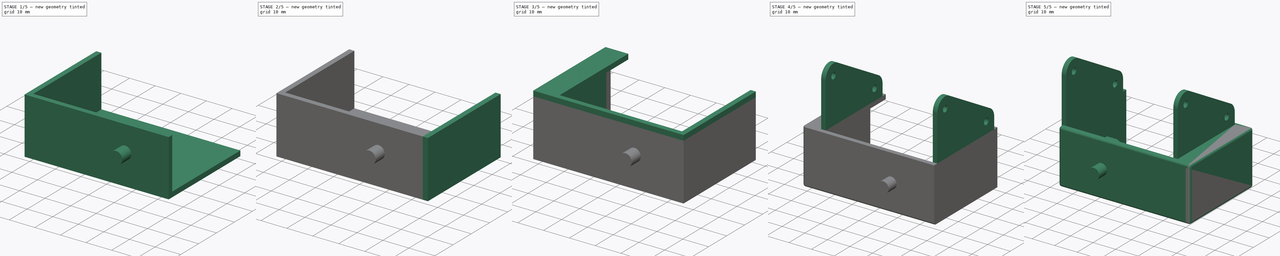
[diagram: build sequence overview — one tinted view per stage of 5, left to right]
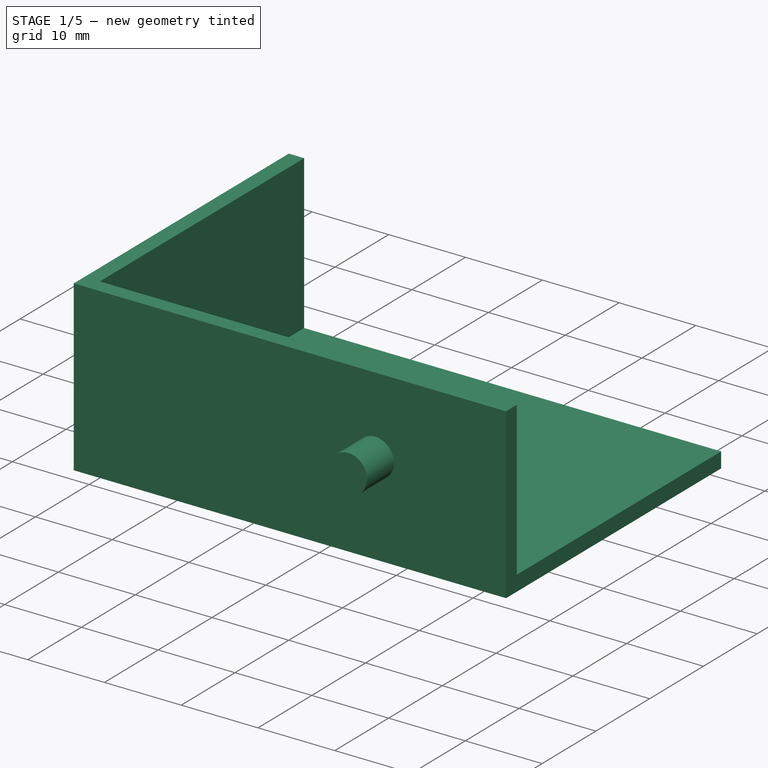
[diagram: stage 1 of 5 — iso view after this stage's code; geometry added in this stage tinted green]
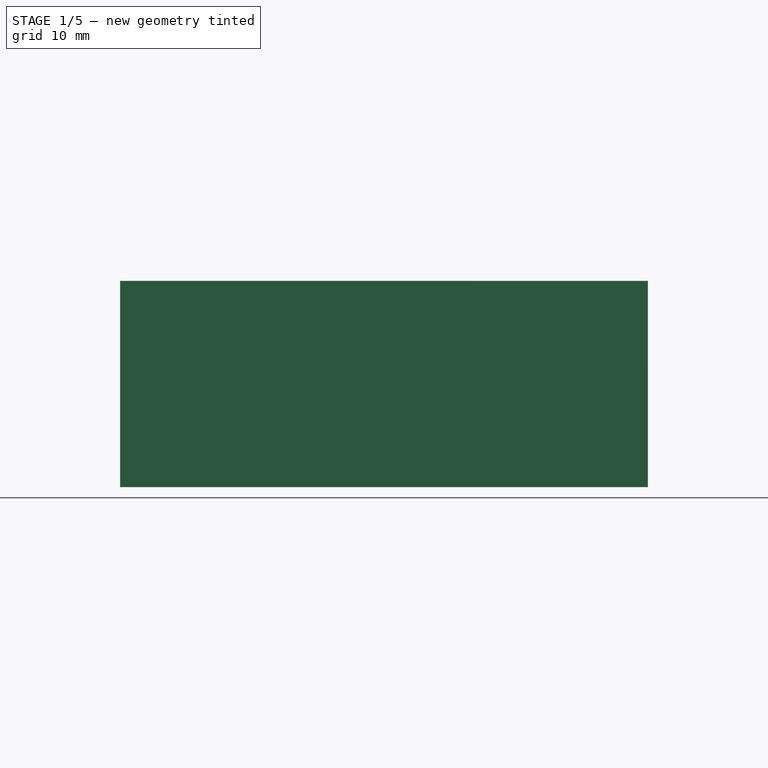
[diagram: stage 1 of 5 — front view after this stage's code; geometry added in this stage tinted green]
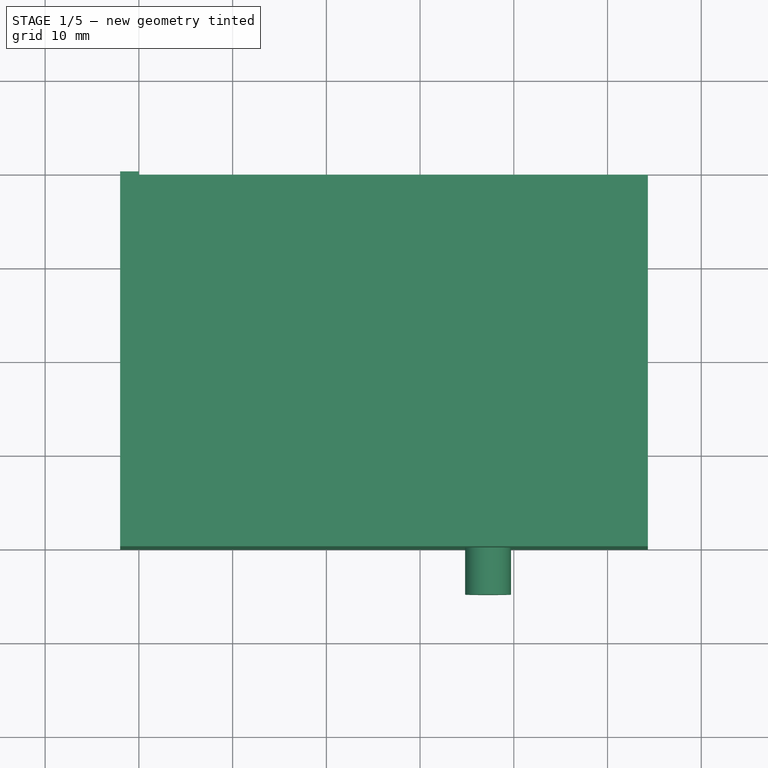
[diagram: stage 1 of 5 — top view after this stage's code; geometry added in this stage tinted green]
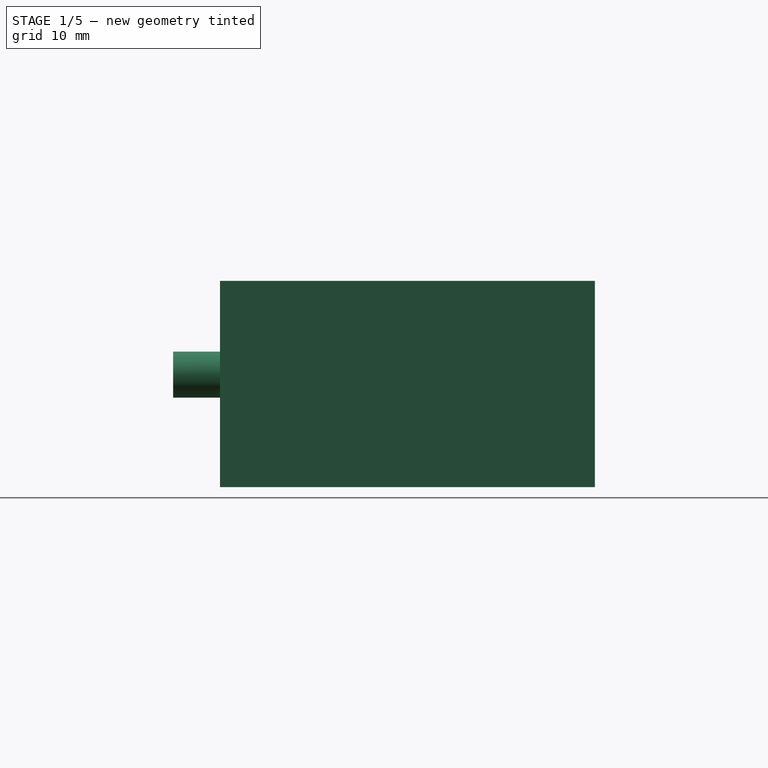
[diagram: stage 1 of 5 — right view after this stage's code; geometry added in this stage tinted green]
FCSTD DOCUMENT  (FreeCAD 0.20R29177 +426 (Git))
Label: 2L_footJoint_bearing
License: All rights reserved
LicenseURL: http://en.wikipedia.org/wiki/All_rights_reserved
objects: Sketcher::SketchObject×12, PartDesign::Pad×10, PartDesign::Fillet×7, PartDesign::Pocket×2, Spreadsheet::Sheet×1, PartDesign::Body×1, Part::Mirroring×1
note: 52 computed .brp shape members not serialized (recipe doc carries the construction recipe); baked Part::Feature solids carry a one-line shape summary decoded from their .brp

FEATURE [Spreadsheet::Sheet] Spreadsheet
  cells = A1=tolerance; B1(tolerance)=0.2; A2=thickness; B2(thickness)=2; A3=servo_outer_x; B3(servo_x)=54.3; A4=servo_inner_x; B4(servo_inner_x)=40.2; A5=servo_y; B5(servo_y)=38; D5=sketch 41,5 real 38,0; A6=servo_z; B6(servo_z)=20; A7=foothold_y_len; B7(foothold_y_len)=15; A8=foothold_y_pos; B8(foothold_y_pos)==25.8 + B2; C8=c; D8=sketch 27.8 real 25,1; A9=foothold_z_len; B9(foothold_z_len)==B6; C9=c; A10=foothold_x_len; B10(foothold_x_len)==(B3 - B4) / 2 - B1; C10=c; A11=upper_hole_z_pos; B11(upper_hole_z_pos)==15 + B2; C11=c; A12=lower_hole_z_pos; B12(lower_hole_z_pos)==5 + B2; C12=c; A13=hole_x_pos; B13(hole_x_pos)=3; A14=hole_diameter; B14(hole_diameter)=3; A15=axis_x_pos; B15(axis_x_pos)=37.25; A16=axis_z_pos; B16(axis_z_pos)==10 + B2; A17=axis_y_pos; B17(axis_y_pos)=0; A18=axis_diameter; B18(axis_diameter)=5.9; A19=axis_dia_bearing; B19(axis_dia_bearing)=4.9; A20=axis_length; B20(axis_length)=5; A21=plate_y_dim; B21(plate_y_dim)==B5 + B2; C21=c; A22=ankle_upper_y_pos; B22(ankle_upper)=7; A23=ankle_lower_y_pos; B23(ankle_lower)=7; A24=ankle_upper_z_pos; B24(ankle_upper_z_pos)=42; A25=ankle_lower_z_pos; B25(ankle_lower_z_pos)=27; A26=screw_dia; B26(screw_dia)=2.8; A27=ankle_lower_z_height; B27(ankle_lower_z_height)==B25 + 3; A28=ankle_top_edge_len; B28(ankle_top_edge_len)=34; A29=servo_hole_z_height; B29(servo_hole_z_height)=10; A30=servo_hole_z_pos; B30(servo_hole_z_pos)=5; A31=servo_hole_y_len; B31(servo_hole_y_len)=5; A32=servo_hole_y_pos; B32(servo_hole_y_pos)=5; A33=servo_hole_radius; B33(servo_hole_radius)=1
FEATURE [Sketcher::SketchObject] Sketch  label="basePlateSketch"
  FullyConstrained = true
  MapMode = 5
  Support = -> [XY_Plane]
  expr: Constraints[11] = Spreadsheet.thickness
  expr: Constraints[9] = Spreadsheet.servo_x
  sketch-geometry (4):
    g0: LineSegment StartX=0 StartY=40 StartZ=0 EndX=54.3 EndY=40 EndZ=0
    g1: LineSegment StartX=54.3 StartY=40 StartZ=0 EndX=54.3 EndY=2 EndZ=0
    g2: LineSegment StartX=54.3 StartY=2 StartZ=0 EndX=0 EndY=2 EndZ=0
    g3: LineSegment StartX=0 StartY=2 StartZ=0 EndX=0 EndY=40 EndZ=0
  constraints (12):
    c: Coincident(g0,g1)
    c: Coincident(g1,g2)
    c: Coincident(g2,g3)
    c: Coincident(g3,g0)
    c: Horizontal(g0)
    c: Horizontal(g2)
    c: Vertical(g1)
    c: Vertical(g3)
    c: PointOnObject(g0,g-2)
    c: DistanceX(g2,g2) = 54.3
    c: DistanceY(g3,g3) = 38
    c: DistanceY(g-1,g2) = 2
FEATURE [PartDesign::Pad] Pad  label="plate"
  Direction = (0,0,1)
  Length = 2
  Length2 = 10
  Profile = -> Sketch
  ReferenceAxis = -> Sketch [N_Axis]
  Type = 0
  expr: Length = Spreadsheet.thickness
FEATURE [Sketcher::SketchObject] Sketch001  label="backPlateSketch"
  ExternalGeometry = -> [Pad]
  FullyConstrained = true
  MapMode = 5
  Support = -> [XY_Plane]
  sketch-geometry (4):
    g0: LineSegment StartX=0 StartY=0 StartZ=0 EndX=54.3 EndY=0 EndZ=0
    g1: LineSegment StartX=54.3 StartY=0 StartZ=0 EndX=54.3 EndY=2 EndZ=0
    g2: LineSegment StartX=54.3 StartY=2 StartZ=0 EndX=0 EndY=2 EndZ=0
    g3: LineSegment StartX=0 StartY=2 StartZ=0 EndX=0 EndY=0 EndZ=0
  constraints (10):
    c: Coincident(g0,g1)
    c: Coincident(g1,g2)
    c: Coincident(g2,g3)
    c: Coincident(g3,g0)
    c: Horizontal(g0)
    c: Horizontal(g2)
    c: Vertical(g1)
    c: Vertical(g3)
    c: Coincident(g0,g-1)
    c: Coincident(g1,g-3)
FEATURE [PartDesign::Pad] Pad001  label="back"
  BaseFeature = -> Pad
  Direction = (0,0,1)
  Length = 22
  Length2 = 10
  Profile = -> Sketch001
  ReferenceAxis = -> Sketch001 [N_Axis]
  Type = 0
  expr: Length = Spreadsheet.servo_z + Spreadsheet.thickness
FEATURE [Sketcher::SketchObject] Sketch002  label="axisSketch"
  ExternalGeometry = -> [Pad001]
  FullyConstrained = true
  MapMode = 5
  Placement = pos=(0,0,0) rot=(1,0,0;1.5708rad)
  Support = -> [XZ_Plane]
  expr: Constraints[0] = Spreadsheet.axis_x_pos
  expr: Constraints[1] = Spreadsheet.axis_z_pos
  expr: Constraints[2] = Spreadsheet.axis_dia_bearing
  sketch-geometry (1):
    g0: Circle CenterX=37.25 CenterY=12 CenterZ=0 NormalX=0 NormalY=0 NormalZ=1 AngleXU=0 Radius=2.45
  constraints (3):
    c: DistanceX(g-5,g0) = 37.25
    c: DistanceY(g-4,g0) = 12
    c: Diameter(g0) = 4.9
FEATURE [PartDesign::Pad] Pad002  label="axis"
  BaseFeature = -> Pad001
  Direction = (0,-1,-2e-16)
  Length = 5
  Length2 = 5
  Profile = -> Sketch002
  ReferenceAxis = -> Sketch002 [N_Axis]
  Type = 0
  expr: Length = Spreadsheet.axis_length
  expr: Length2 = Spreadsheet.axis_length
FEATURE [Sketcher::SketchObject] Sketch003  label="leftSideWallSketch"
  ExternalGeometry = -> [Pad002]
  FullyConstrained = true
  MapMode = 5
  Placement = pos=(0,0,0) rot=(0.57735,-0.57735,-0.57735;2.0944rad)
  Support = -> [Pad002]
  sketch-geometry (4):
    g0: LineSegment StartX=0 StartY=0 StartZ=0 EndX=-40 EndY=0 EndZ=0
    g1: LineSegment StartX=-40 StartY=0 StartZ=0 EndX=-40 EndY=22 EndZ=0
    g2: LineSegment StartX=-40 StartY=22 StartZ=0 EndX=0 EndY=22 EndZ=0
    g3: LineSegment StartX=0 StartY=22 StartZ=0 EndX=0 EndY=0 EndZ=0
  constraints (10):
    c: Coincident(g0,g1)
    c: Coincident(g1,g2)
    c: Coincident(g2,g3)
    c: Coincident(g3,g0)
    c: Horizontal(g0)
    c: Horizontal(g2)
    c: Vertical(g1)
    c: Vertical(g3)
    c: Coincident(g-4,g2)
    c: Coincident(g-3,g0)
FEATURE [PartDesign::Pad] Pad003  label="leftSideWallPad"
  BaseFeature = -> Pad002
  Direction = (-1,0,0)
  Length = 2
  Length2 = 10
  Profile = -> Sketch003
  ReferenceAxis = -> Sketch003 [N_Axis]
  Type = 0
  expr: Length = Spreadsheet.thickness
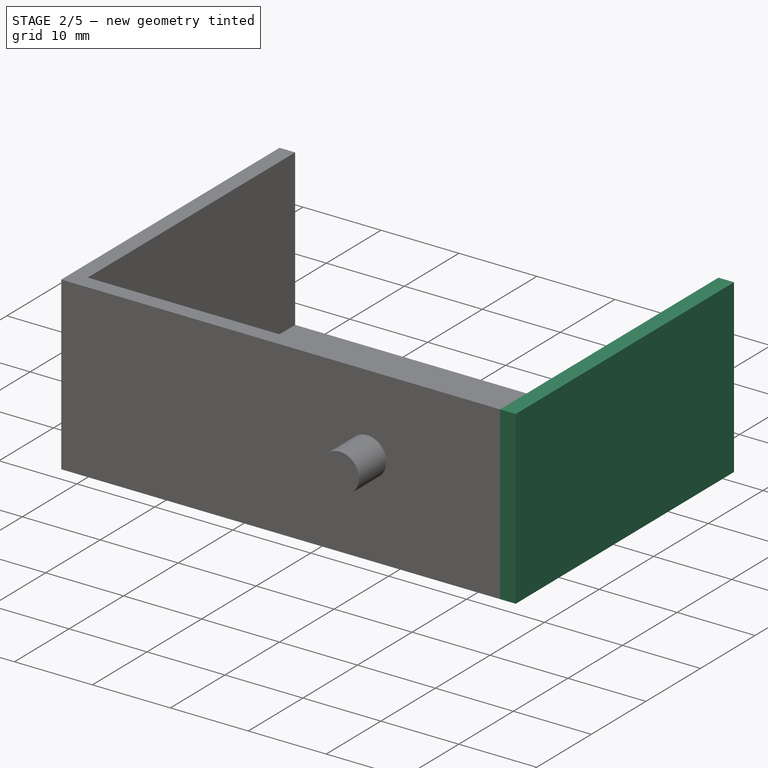
[diagram: stage 2 of 5 — iso view after this stage's code; geometry added in this stage tinted green]
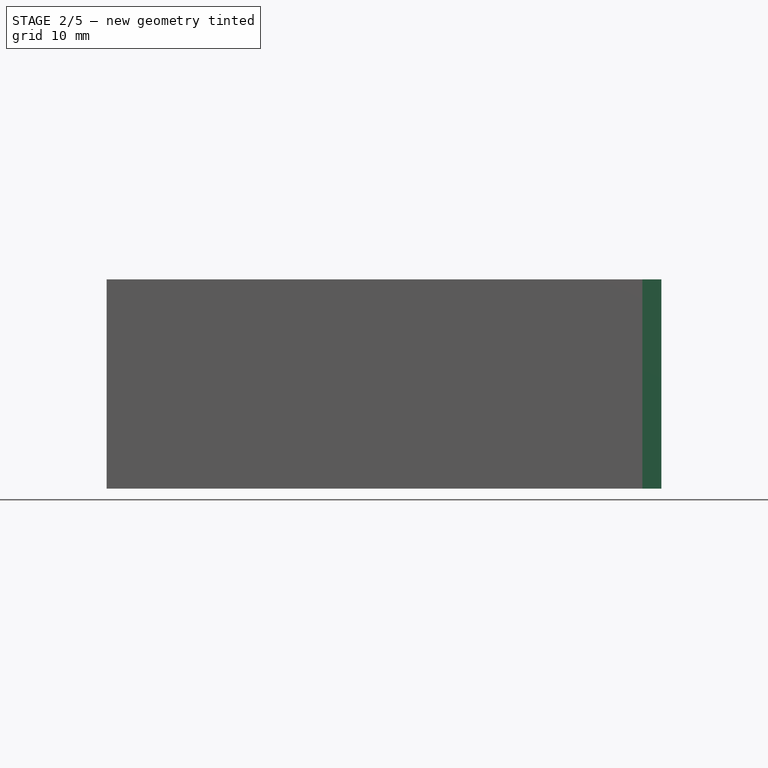
[diagram: stage 2 of 5 — front view after this stage's code; geometry added in this stage tinted green]
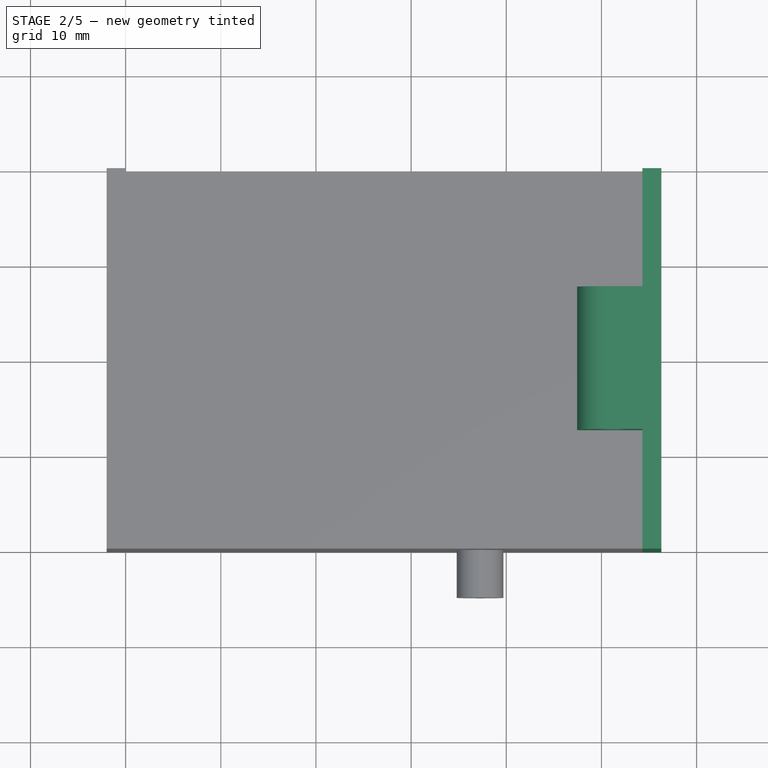
[diagram: stage 2 of 5 — top view after this stage's code; geometry added in this stage tinted green]
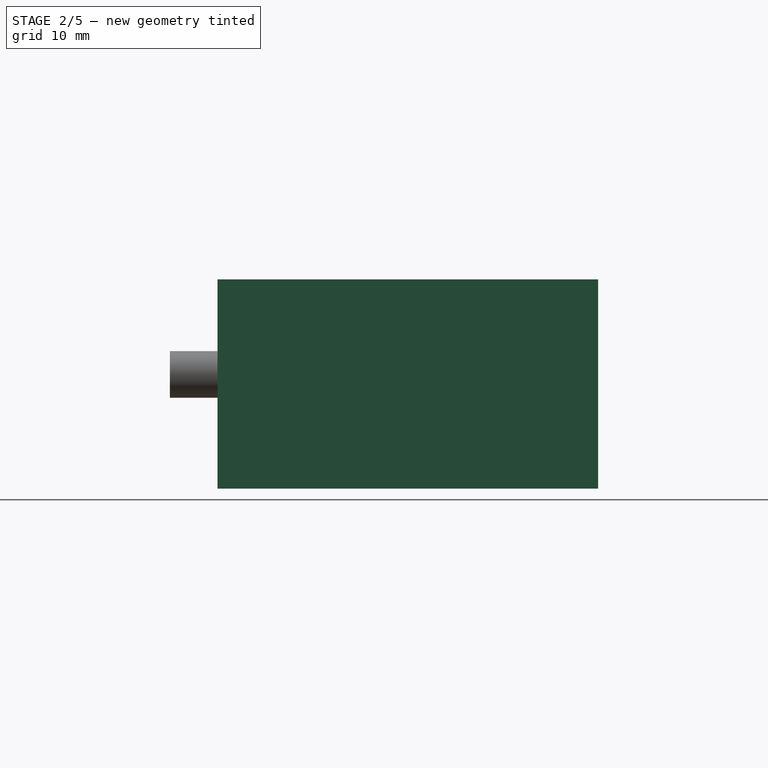
[diagram: stage 2 of 5 — right view after this stage's code; geometry added in this stage tinted green]
FEATURE [Sketcher::SketchObject] Sketch004  label="rightSideWallSketch"
  ExternalGeometry = -> [Pad003]
  FullyConstrained = true
  MapMode = 5
  Placement = pos=(54.3,0,0) rot=(0.57735,0.57735,0.57735;2.0944rad)
  Support = -> [Pad003]
  sketch-geometry (4):
    g0: LineSegment StartX=0 StartY=22 StartZ=0 EndX=40 EndY=22 EndZ=0
    g1: LineSegment StartX=40 StartY=22 StartZ=0 EndX=40 EndY=0 EndZ=0
    g2: LineSegment StartX=40 StartY=0 StartZ=0 EndX=0 EndY=0 EndZ=0
    g3: LineSegment StartX=0 StartY=0 StartZ=0 EndX=0 EndY=22 EndZ=0
  constraints (10):
    c: Coincident(g0,g1)
    c: Coincident(g1,g2)
    c: Coincident(g2,g3)
    c: Coincident(g3,g0)
    c: Horizontal(g0)
    c: Horizontal(g2)
    c: Vertical(g1)
    c: Vertical(g3)
    c: Coincident(g0,g-4)
    c: Coincident(g1,g-3)
FEATURE [PartDesign::Pad] Pad004  label="rightSideWallPad"
  BaseFeature = -> Pad003
  Direction = (1,0,0)
  Length = 2
  Length2 = 10
  Profile = -> Sketch004
  ReferenceAxis = -> Sketch004 [N_Axis]
  Type = 0
  expr: Length = Spreadsheet.thickness
FEATURE [Sketcher::SketchObject] Sketch005  label="servoHolderRightSketch"
  ExternalGeometry = -> [Pad004]
  FullyConstrained = true
  MapMode = 5
  Placement = pos=(0,0,2) rot=(0,0,1;0rad)
  Support = -> [Pad004]
  expr: Constraints[10] = Spreadsheet.foothold_y_pos
  expr: Constraints[11] = Spreadsheet.foothold_y_len
  expr: Constraints[9] = Spreadsheet.foothold_x_len
  sketch-geometry (4):
    g0: LineSegment StartX=54.3 StartY=12.8 StartZ=0 EndX=47.45 EndY=12.8 EndZ=0
    g1: LineSegment StartX=47.45 StartY=12.8 StartZ=0 EndX=47.45 EndY=27.8 EndZ=0
    g2: LineSegment StartX=47.45 StartY=27.8 StartZ=0 EndX=54.3 EndY=27.8 EndZ=0
    g3: LineSegment StartX=54.3 StartY=27.8 StartZ=0 EndX=54.3 EndY=12.8 EndZ=0
  constraints (12):
    c: Coincident(g0,g1)
    c: Coincident(g1,g2)
    c: Coincident(g2,g3)
    c: Coincident(g3,g0)
    c: Horizontal(g0)
    c: Horizontal(g2)
    c: Vertical(g1)
    c: Vertical(g3)
    c: Vertical(g0,g-4)
    c: DistanceX(g0,g0) = 6.85
    c: DistanceY(g-4,g2) = 27.8
    c: DistanceY(g0,g2) = 15
FEATURE [PartDesign::Pad] Pad005  label="servorHolderRightPad"
  BaseFeature = -> Pad004
  Direction = (0,0,1)
  Length = 8
  Length2 = 10
  Profile = -> Sketch005
  ReferenceAxis = -> Sketch005 [N_Axis]
  Type = 0
  expr: Length = 8
FEATURE [Sketcher::SketchObject] Sketch006  label="rightServoHolderHoleSketch"
  ExternalGeometry = -> [Pad005]
  FullyConstrained = true
  MapMode = 5
  Placement = pos=(0,27.8,0) rot=(0,0.707107,0.707107;3.14159rad)
  Support = -> [Pad005]
  expr: Constraints[0] = Spreadsheet.lower_hole_z_pos
  expr: Constraints[1] = Spreadsheet.screw_dia
  expr: Constraints[2] = Spreadsheet.hole_x_pos
  sketch-geometry (1):
    g0: Circle CenterX=-51.3 CenterY=7 CenterZ=0 NormalX=0 NormalY=0 NormalZ=1 AngleXU=0 Radius=1.4
  constraints (3):
    c: DistanceY(g-1,g0) = 7
    c: Diameter(g0) = 2.8
    c: DistanceX(g-3,g0) = 3
FEATURE [PartDesign::Pocket] Pocket  label="rightServoHolderHolePocket"
  BaseFeature = -> Pad005
  Direction = (0,-1,2e-16)
  Length = 15
  Length2 = 5
  Profile = -> Sketch006
  ReferenceAxis = -> Sketch006 [N_Axis]
  Type = 0
  expr: Length = Spreadsheet.foothold_y_len
FEATURE [PartDesign::Fillet] Fillet  label="rightServoHolderInnerFillet"
  Base = -> Pocket [Edge49]
  BaseFeature = -> Pocket
  Radius = 3
  SupportTransform = false
  UseAllEdges = false
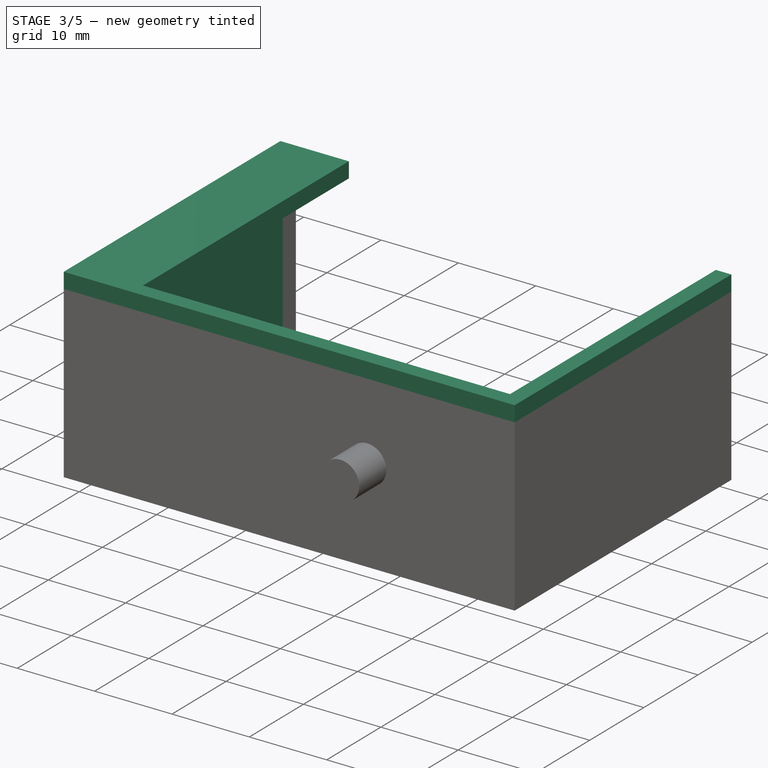
[diagram: stage 3 of 5 — iso view after this stage's code; geometry added in this stage tinted green]
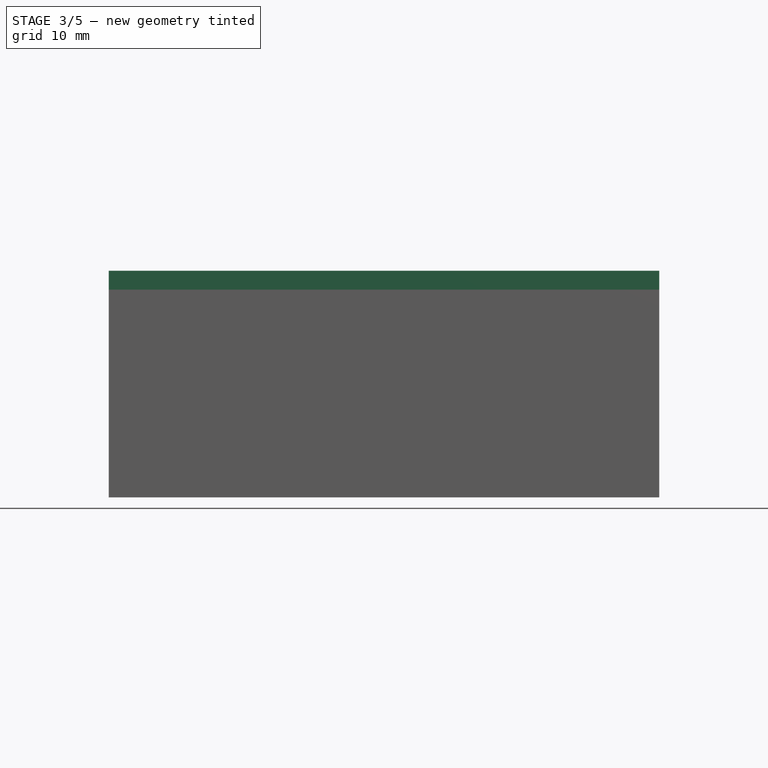
[diagram: stage 3 of 5 — front view after this stage's code; geometry added in this stage tinted green]
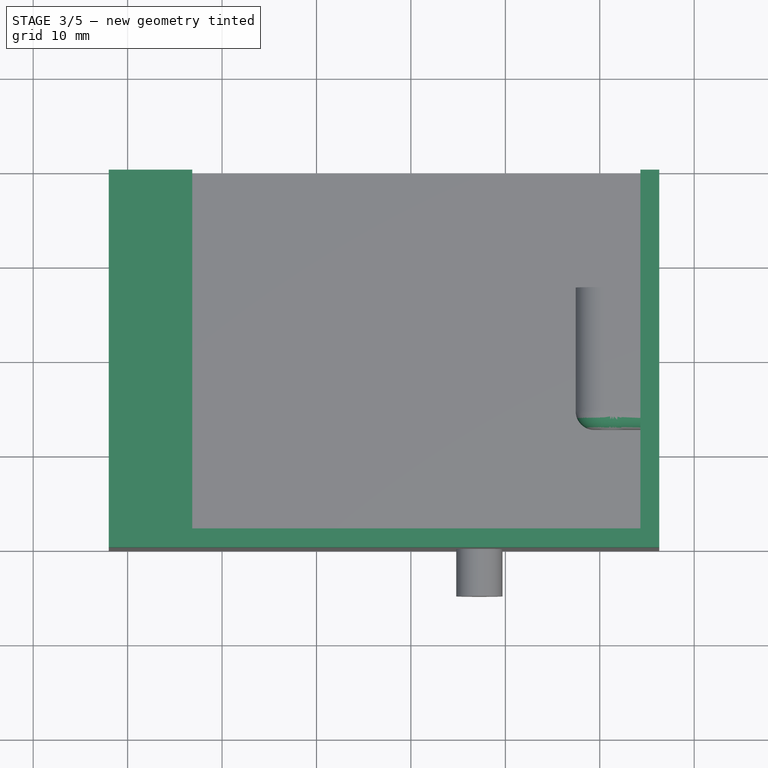
[diagram: stage 3 of 5 — top view after this stage's code; geometry added in this stage tinted green]
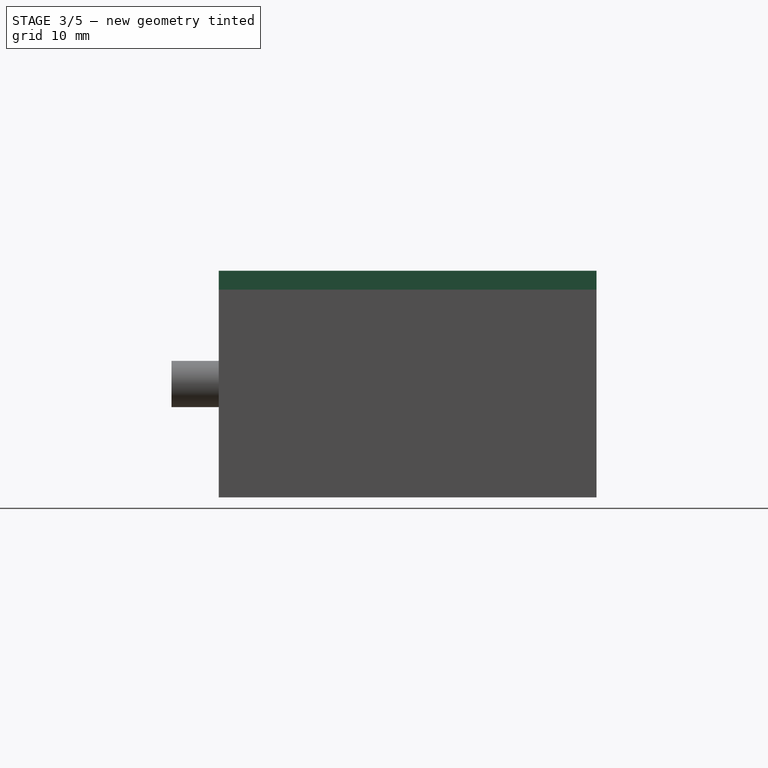
[diagram: stage 3 of 5 — right view after this stage's code; geometry added in this stage tinted green]
FEATURE [PartDesign::Fillet] Fillet001  label="rightServoHolderBacklFillet"
  Base = -> Fillet [Edge18]
  BaseFeature = -> Fillet
  Radius = 2
  SupportTransform = false
  UseAllEdges = false
FEATURE [Sketcher::SketchObject] Sketch007  label="leftServoHolderSketch"
  ExternalGeometry = -> [Fillet001]
  FullyConstrained = true
  MapMode = 5
  Placement = pos=(0,0,2) rot=(0,0,1;0rad)
  Support = -> [Fillet001]
  expr: Constraints[10] = Spreadsheet.foothold_x_len
  expr: Constraints[9] = Spreadsheet.foothold_y_pos
  sketch-geometry (4):
    g0: LineSegment StartX=0 StartY=2 StartZ=0 EndX=6.85 EndY=2 EndZ=0
    g1: LineSegment StartX=6.85 StartY=2 StartZ=0 EndX=6.85 EndY=27.8 EndZ=0
    g2: LineSegment StartX=6.85 StartY=27.8 StartZ=0 EndX=0 EndY=27.8 EndZ=0
    g3: LineSegment StartX=0 StartY=27.8 StartZ=0 EndX=0 EndY=2 EndZ=0
  constraints (11):
    c: Coincident(g0,g1)
    c: Coincident(g1,g2)
    c: Coincident(g2,g3)
    c: Coincident(g3,g0)
    c: Horizontal(g0)
    c: Horizontal(g2)
    c: Vertical(g1)
    c: Vertical(g3)
    c: Coincident(g0,g-4)
    c: DistanceY(g-1,g2) = 27.8
    c: DistanceX(g0,g0) = 6.85
FEATURE [PartDesign::Pad] Pad006  label="leftServoHolderPad"
  BaseFeature = -> Fillet001
  Direction = (0,0,1)
  Length = 20
  Length2 = 10
  Profile = -> Sketch007
  ReferenceAxis = -> Sketch007 [N_Axis]
  Type = 0
  expr: Length = Spreadsheet.foothold_z_len
FEATURE [Sketcher::SketchObject] Sketch008  label="leftServoHoleSketch"
  FullyConstrained = true
  MapMode = 5
  Placement = pos=(0,27.8,0) rot=(0,0.707107,0.707107;3.14159rad)
  Support = -> [Pad006]
  expr: Constraints[1] = Spreadsheet.screw_dia
  expr: Constraints[3] = Spreadsheet.hole_x_pos
  expr: Constraints[4] = Spreadsheet.lower_hole_z_pos
  expr: Constraints[5] = Spreadsheet.upper_hole_z_pos
  sketch-geometry (2):
    g0: Circle CenterX=-3 CenterY=7 CenterZ=0 NormalX=0 NormalY=0 NormalZ=1 AngleXU=0 Radius=1.4
    g1: Circle CenterX=-3 CenterY=17 CenterZ=0 NormalX=0 NormalY=0 NormalZ=1 AngleXU=0 Radius=1.4
  constraints (6):
    c: Equal(g1,g0)
    c: Diameter(g1) = 2.8
    c: Vertical(g1,g0)
    c: DistanceX(g0,g-1) = 3
    c: DistanceY(g-1,g0) = 7
    c: DistanceY(g-1,g1) = 17
FEATURE [PartDesign::Pocket] Pocket001  label="leftServoHolePocket"
  BaseFeature = -> Pad006
  Direction = (0,-1,2e-16)
  Length = 15
  Length2 = 5
  Profile = -> Sketch008
  ReferenceAxis = -> Sketch008 [N_Axis]
  Type = 0
  expr: Length = Spreadsheet.foothold_y_len
FEATURE [Sketcher::SketchObject] Sketch009  label="tectumSketch"
  ExternalGeometry = -> [Pocket001]
  FullyConstrained = true
  MapMode = 5
  Placement = pos=(0,0,22) rot=(0,0,1;0rad)
  Support = -> [Pocket001]
  sketch-geometry (8):
    g0: LineSegment StartX=54.3 StartY=2 StartZ=0 EndX=54.3 EndY=40 EndZ=0
    g1: LineSegment StartX=54.3 StartY=40 StartZ=0 EndX=56.3 EndY=40 EndZ=0
    g2: LineSegment StartX=56.3 StartY=40 StartZ=0 EndX=56.3 EndY=0 EndZ=0
    g3: LineSegment StartX=56.3 StartY=0 StartZ=0 EndX=-2 EndY=0 EndZ=0
    g4: LineSegment StartX=-2 StartY=0 StartZ=0 EndX=-2 EndY=40 EndZ=0
    g5: LineSegment StartX=-2 StartY=40 StartZ=0 EndX=6.85 EndY=40 EndZ=0
    g6: LineSegment StartX=6.85 StartY=40 StartZ=0 EndX=6.85 EndY=2 EndZ=0
    g7: LineSegment StartX=6.85 StartY=2 StartZ=0 EndX=54.3 EndY=2 EndZ=0
  constraints (17):
    c: Coincident(g0,g-10)
    c: Coincident(g0,g-7)
    c: Coincident(g0,g1)
    c: Coincident(g1,g-8)
    c: Coincident(g1,g2)
    c: Coincident(g2,g-9)
    c: Coincident(g2,g3)
    c: Coincident(g3,g-3)
    c: Coincident(g3,g4)
    c: Coincident(g4,g-4)
    c: Coincident(g4,g5)
    c: Horizontal(g5)
    c: Coincident(g5,g6)
    c: Coincident(g6,g-11)
    c: Coincident(g6,g7)
    c: Coincident(g7,g0)
    c: Vertical(g6)
FEATURE [PartDesign::Pad] Pad007  label="tectumPad"
  BaseFeature = -> Pocket001
  Direction = (0,0,1)
  Length = 2
  Length2 = 10
  Profile = -> Sketch009
  ReferenceAxis = -> Sketch009 [N_Axis]
  Type = 0
  expr: Length = Spreadsheet.thickness
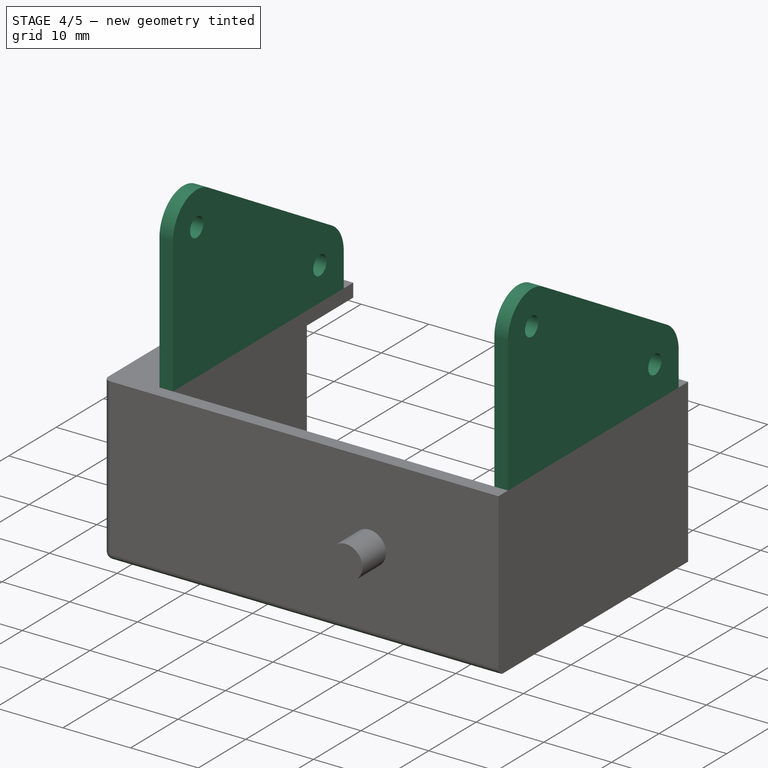
[diagram: stage 4 of 5 — iso view after this stage's code; geometry added in this stage tinted green]
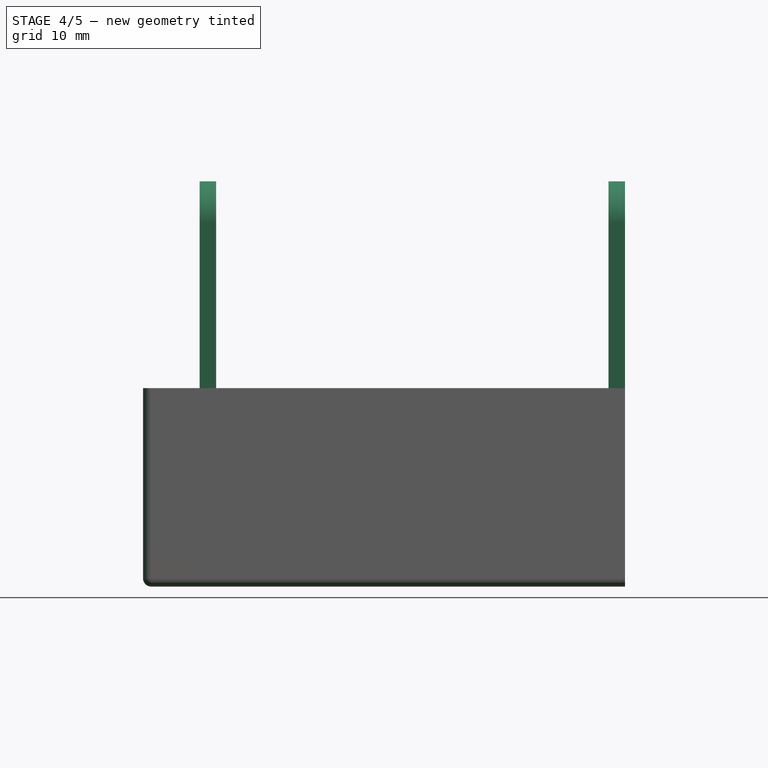
[diagram: stage 4 of 5 — front view after this stage's code; geometry added in this stage tinted green]
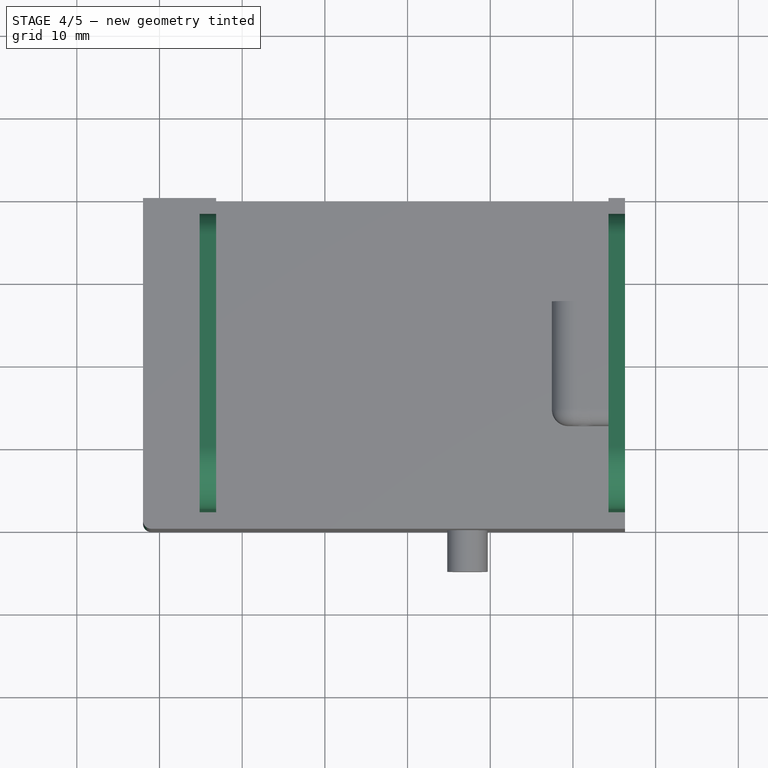
[diagram: stage 4 of 5 — top view after this stage's code; geometry added in this stage tinted green]
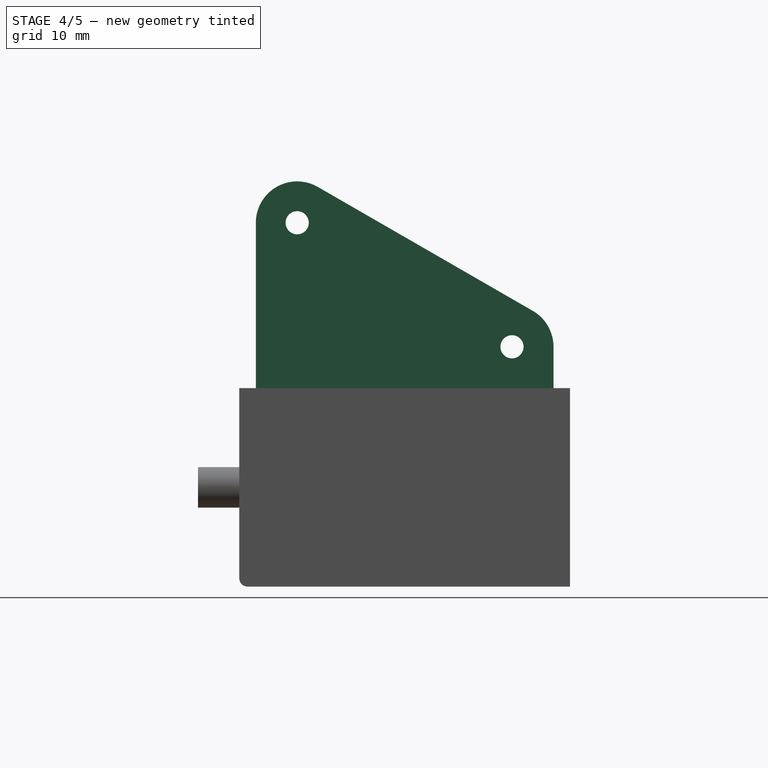
[diagram: stage 4 of 5 — right view after this stage's code; geometry added in this stage tinted green]
FEATURE [Sketcher::SketchObject] Sketch010  label="leftUpperSideWallSketch"
  ExternalGeometry = -> [Pad007]
  FullyConstrained = true
  MapMode = 5
  Placement = pos=(6.85,0,0) rot=(0.57735,0.57735,0.57735;2.0944rad)
  Support = -> [Pad007]
  expr: Constraints[11] = Spreadsheet.thickness
  expr: Constraints[3] = 15
  expr: Constraints[6] = Spreadsheet.screw_dia
  expr: Constraints[7] = Spreadsheet.ankle_upper_z_pos + Spreadsheet.thickness
  expr: Constraints[8] = Spreadsheet.ankle_upper
  sketch-geometry (8):
    g0: LineSegment StartX=2 StartY=24 StartZ=0 EndX=38 EndY=24 EndZ=0
    g1: LineSegment StartX=35.4876 StartY=33.3484 StartZ=0 EndX=9.49722 EndY=48.3317 EndZ=0
    g2: ArcOfCircle CenterX=7 CenterY=44 CenterZ=0 NormalX=0 NormalY=0 NormalZ=1 AngleXU=0 Radius=5 StartAngle=1.04784 EndAngle=3.14159
    g3: ArcOfCircle CenterX=32.9808 CenterY=29 CenterZ=0 NormalX=0 NormalY=0 NormalZ=1 AngleXU=0 Radius=5.01924 StartAngle=8.1e-15 EndAngle=1.04784
    g4: Circle CenterX=7 CenterY=44 CenterZ=0 NormalX=0 NormalY=0 NormalZ=1 AngleXU=0 Radius=1.4
    g5: Circle CenterX=32.9808 CenterY=29 CenterZ=0 NormalX=0 NormalY=0 NormalZ=1 AngleXU=0 Radius=1.4
    g6: LineSegment StartX=2 StartY=44 StartZ=0 EndX=2 EndY=24 EndZ=0
    g7: LineSegment StartX=38 StartY=29 StartZ=0 EndX=38 EndY=24 EndZ=0
  constraints (21):
    c: Horizontal(g0)
    c: Tangent(g1,g2) = -1.5708
    c: Tangent(g1,g3) = -1.5708
    c: DistanceY(g5,g4) = 15
    c: Distance(g4,g5) = 30
    c: Equal(g4,g5)
    c: Diameter(g4) = 2.8
    c: DistanceY(g-1,g4) = 44
    c: DistanceX(g-1,g4) = 7
    c: Coincident(g5,g3)
    c: Coincident(g4,g2)
    c: DistanceX(g0,g-4) = 2
    c: Coincident(g6,g2)
    c: Coincident(g6,g0)
    c: Vertical(g6)
    c: Coincident(g0,g-3)
    c: Horizontal(g2,g2)
    c: Coincident(g7,g3)
    c: Coincident(g7,g0)
    c: Vertical(g7)
    c: Horizontal(g3,g3)
FEATURE [PartDesign::Pad] Pad008  label="leftUpperSideWallPad"
  BaseFeature = -> Pad007
  Direction = (1,0,0)
  Length = 2
  Length2 = 10
  Profile = -> Sketch010
  ReferenceAxis = -> Sketch010 [N_Axis]
  Reversed = true
  Type = 0
  expr: Length = Spreadsheet.thickness
FEATURE [Sketcher::SketchObject] Sketch011  label="rightUpperSideWallSketch"
  ExternalGeometry = -> [Pad008]
  FullyConstrained = true
  MapMode = 5
  Placement = pos=(54.3,0,0) rot=(0.57735,-0.57735,-0.57735;2.0944rad)
  Support = -> [Pad008]
  expr: Constraints[10] = Spreadsheet.thickness
  expr: Constraints[12] = Spreadsheet.screw_dia
  expr: Constraints[15] = Spreadsheet.ankle_upper
  expr: Constraints[16] = Spreadsheet.ankle_upper_z_pos + Spreadsheet.thickness
  sketch-geometry (8):
    g0: LineSegment StartX=-38 StartY=24 StartZ=0 EndX=-38 EndY=29 EndZ=0
    g1: LineSegment StartX=-35.4876 StartY=33.3484 StartZ=0 EndX=-9.49722 EndY=48.3317 EndZ=0
    g2: LineSegment StartX=-2 StartY=44 StartZ=0 EndX=-2 EndY=24 EndZ=0
    g3: LineSegment StartX=-2 StartY=24 StartZ=0 EndX=-38 EndY=24 EndZ=0
    g4: ArcOfCircle CenterX=-32.9808 CenterY=29 CenterZ=0 NormalX=0 NormalY=0 NormalZ=1 AngleXU=0 Radius=5.01924 StartAngle=2.09375 EndAngle=3.14159
    g5: ArcOfCircle CenterX=-7 CenterY=44 CenterZ=0 NormalX=0 NormalY=0 NormalZ=1 AngleXU=0 Radius=5 StartAngle=0 EndAngle=2.09375
    g6: Circle CenterX=-7 CenterY=44 CenterZ=0 NormalX=0 NormalY=0 NormalZ=1 AngleXU=0 Radius=1.4
    g7: Circle CenterX=-32.9808 CenterY=29 CenterZ=0 NormalX=0 NormalY=0 NormalZ=1 AngleXU=0 Radius=1.4
  constraints (19):
    c: PointOnObject(g0,g-5)
    c: Vertical(g0)
    c: Coincident(g2,g-5)
    c: Coincident(g2,g3)
    c: Coincident(g3,g0)
    c: Tangent(g0,g4) = 1.5708
    c: Tangent(g1,g4) = 1.5708
    c: Tangent(g1,g5) = 1.5708
    c: Tangent(g2,g5) = 1.5708
    c: Vertical(g2)
    c: DistanceX(g-5,g0) = 2
    c: Equal(g6,g7)
    c: Diameter(g6) = 2.8
    c: DistanceY(g7,g6) = 15
    c: Distance(g6,g7) = 30
    c: DistanceX(g6,g-1) = 7
    c: DistanceY(g-1,g6) = 44
    c: Coincident(g4,g7)
    c: Coincident(g5,g6)
FEATURE [PartDesign::Pad] Pad009  label="rightUpperSideWallPad"
  BaseFeature = -> Pad008
  Direction = (-1,0,0)
  Length = 2
  Length2 = 10
  Profile = -> Sketch011
  ReferenceAxis = -> Sketch011 [N_Axis]
  Reversed = true
  Type = 0
  expr: Length = Spreadsheet.thickness
FEATURE [PartDesign::Fillet] Fillet002
  Base = -> Pad009 [Edge113]
  BaseFeature = -> Pad009
  Radius = 1
  SupportTransform = false
  UseAllEdges = false
FEATURE [PartDesign::Fillet] Fillet003
  Base = -> Fillet002 [Edge27]
  BaseFeature = -> Fillet002
  Radius = 1
  SupportTransform = false
  UseAllEdges = false
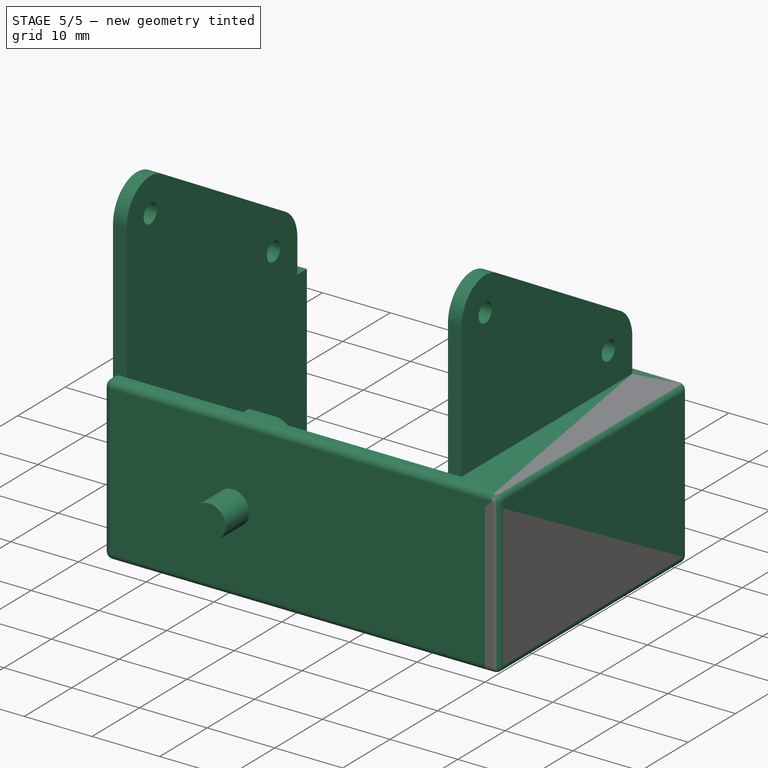
[diagram: stage 5 of 5 — iso view after this stage's code; geometry added in this stage tinted green]
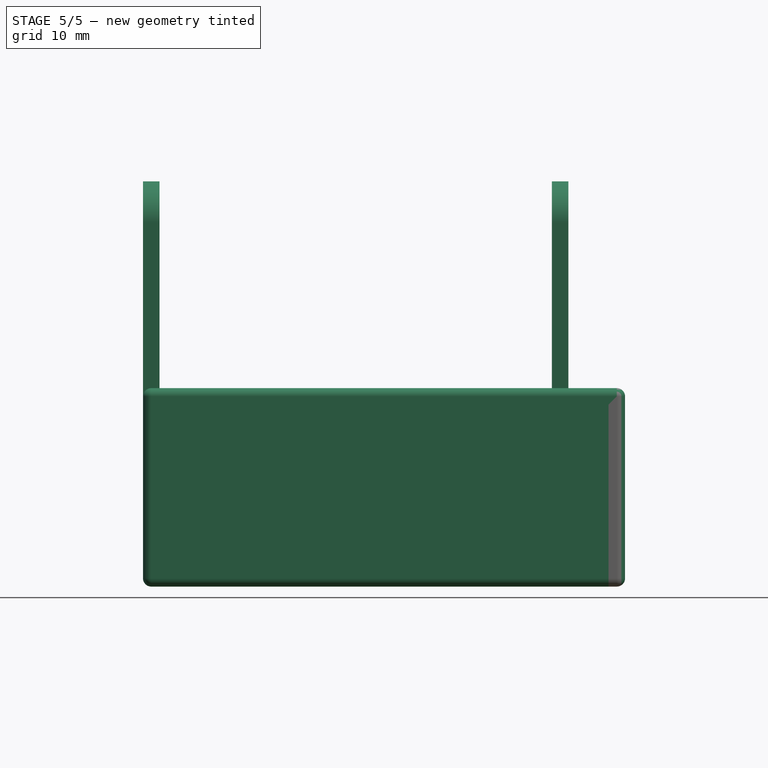
[diagram: stage 5 of 5 — front view after this stage's code; geometry added in this stage tinted green]
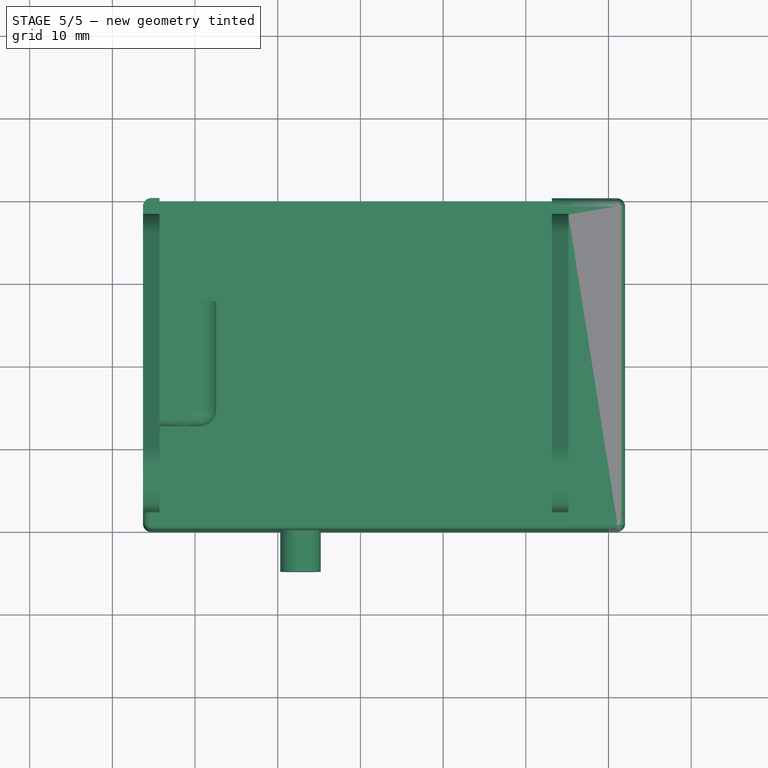
[diagram: stage 5 of 5 — top view after this stage's code; geometry added in this stage tinted green]
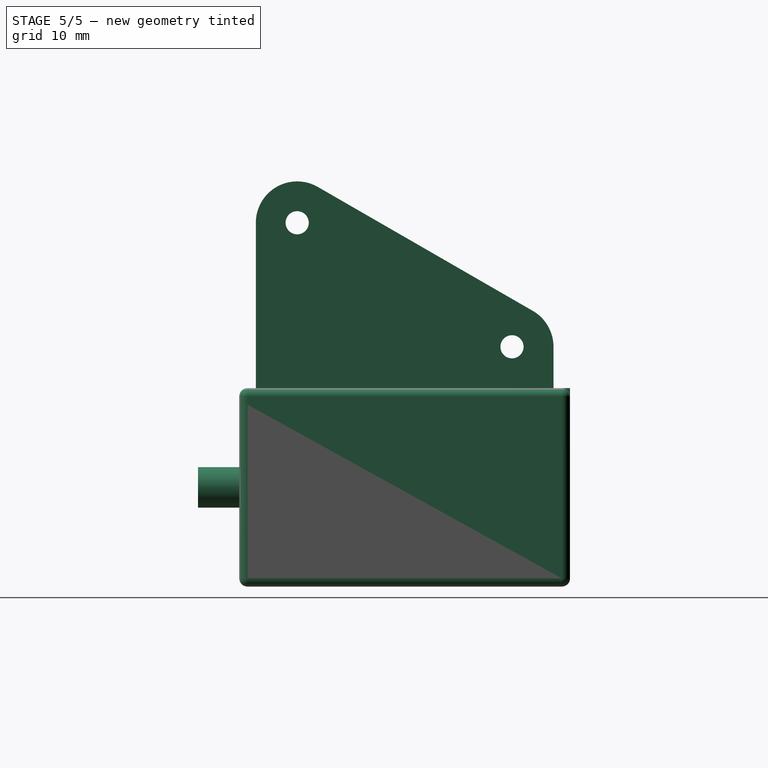
[diagram: stage 5 of 5 — right view after this stage's code; geometry added in this stage tinted green]
FEATURE [PartDesign::Fillet] Fillet004
  Base = -> Fillet003 [Edge19]
  BaseFeature = -> Fillet003
  Radius = 1
  SupportTransform = false
  UseAllEdges = false
FEATURE [PartDesign::Fillet] Fillet005
  Base = -> Fillet004 [Edge39]
  BaseFeature = -> Fillet004
  Radius = 1
  SupportTransform = false
  UseAllEdges = false
FEATURE [PartDesign::Fillet] Fillet006
  Base = -> Fillet005 [Edge71]
  BaseFeature = -> Fillet005
  Radius = 1
  SupportTransform = false
  UseAllEdges = false
FEATURE [PartDesign::Body] Body
  Group = -> [Sketch,Pad,Sketch001,Pad001,Sketch002,Pad002,Sketch003,Pad003,Sketch004,Pad004,Sketch005,Pad005,Sketch006,Pocket,Fillet,Fillet001,Sketch007,Pad006,Sketch008,Pocket001,Sketch009,Pad007,Sketch010,Pad008,Sketch011,Pad009,Fillet002,Fillet003,Fillet004,Fillet005,Fillet006]
  Origin = -> Origin
  Tip = -> Fillet006
FEATURE [Part::Mirroring] Part__Mirroring  label="Body (Mirror #1)"
  Base = (0,0,0)
  Normal = (1,0,0)
  Source = -> Body
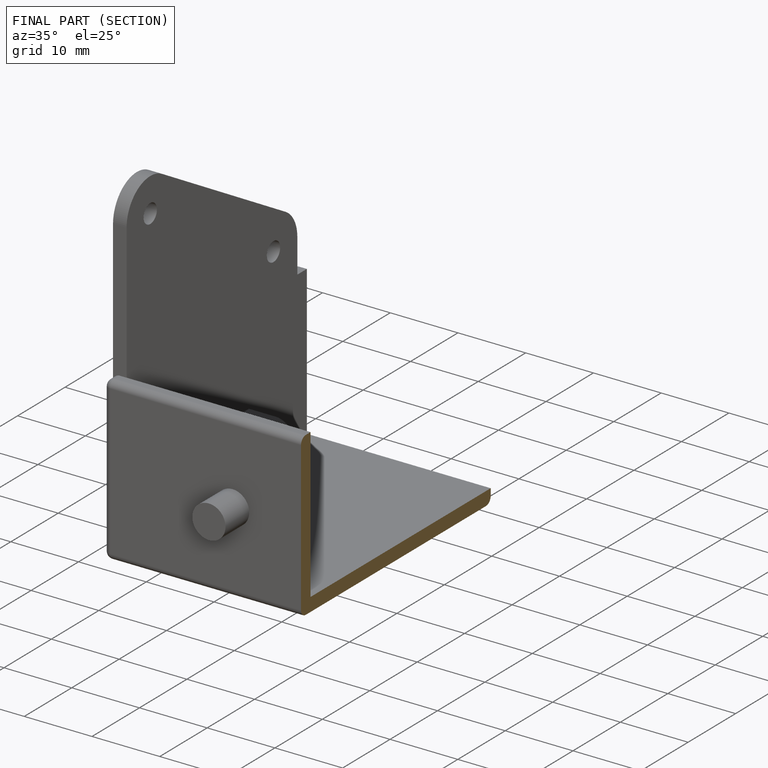
[diagram: finished part — half-section view (interior)]
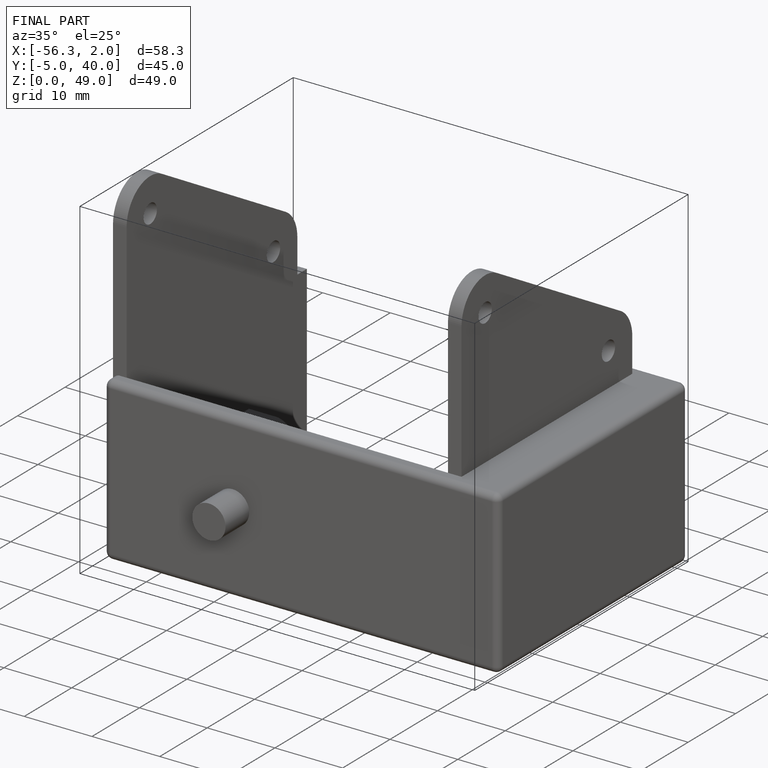
[diagram: finished part — iso view with bounding-box wireframe]
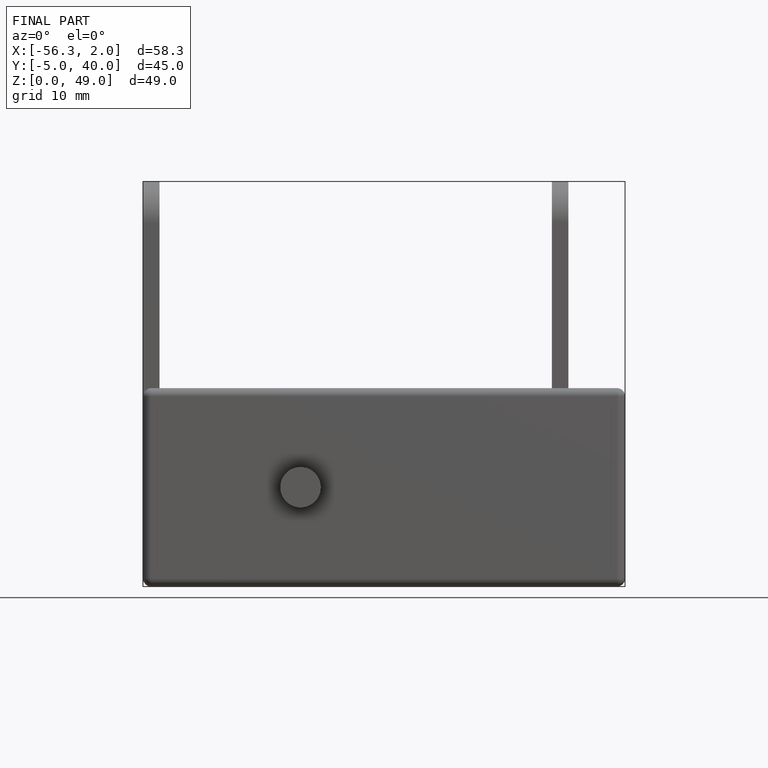
[diagram: finished part — front view with bounding-box wireframe]
